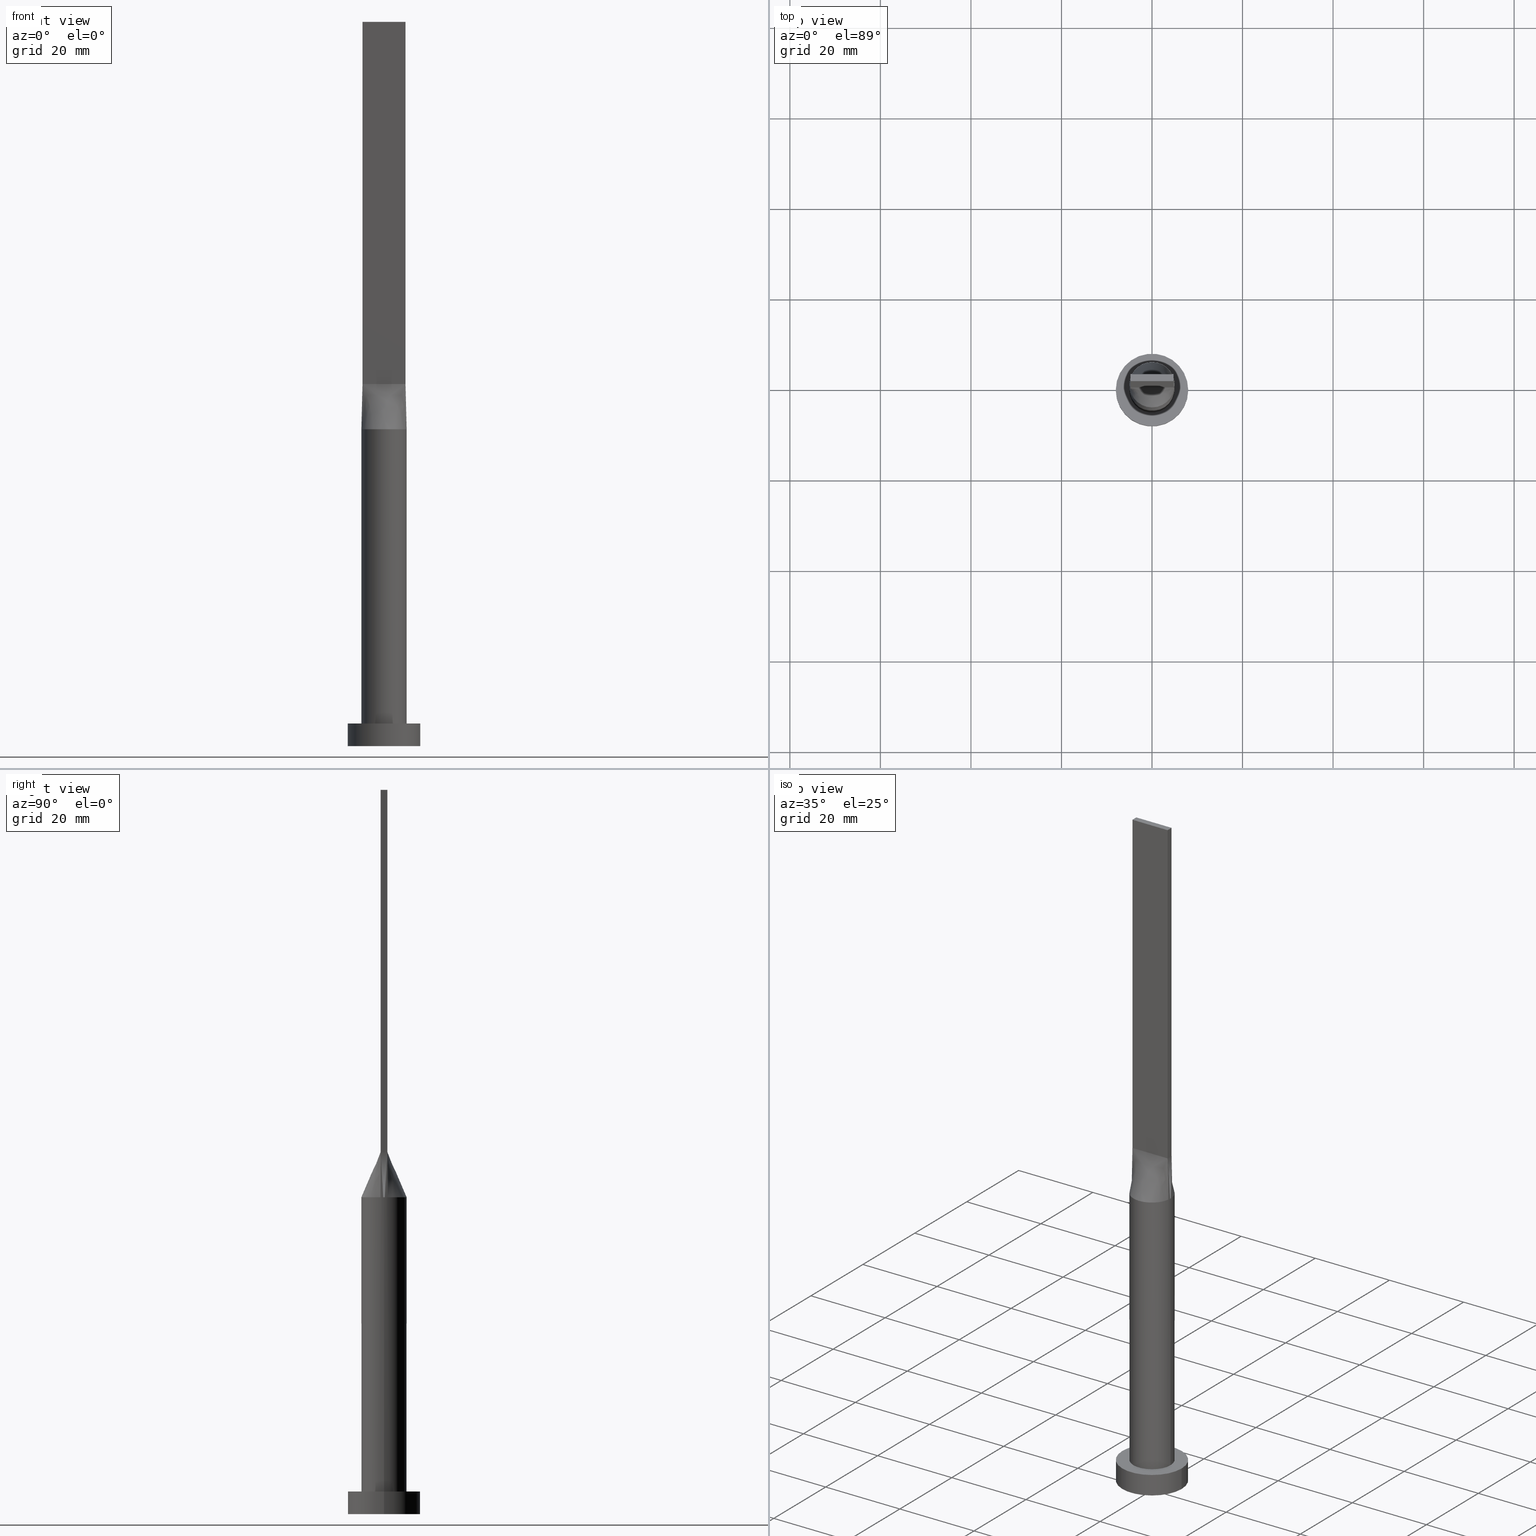
[diagram: canonical four-view strip — front | top / right | iso, engineering-drawing reading convention]
A machine part, canonical four-view strip (front | top / right | iso — engineering-drawing reading convention). The complete STEP part file that produces these views, byte-faithful:
ISO-10303-21;
HEADER;
FILE_DESCRIPTION (( 'STEP AP203' ),
    '1' );
FILE_NAME ('edcd.STEP',
    '2023-02-13T09:35:09',
    ( '' ),
    ( '' ),
    'SwSTEP 2.0',
    'SolidWorks 2019',
    '' );
FILE_SCHEMA (( 'CONFIG_CONTROL_DESIGN' ));
ENDSEC;

DATA;
#1 = LOCAL_TIME ( 10, 35, 9.000000000000000000, #235 ) ;
#2 = CARTESIAN_POINT ( 'NONE',  ( 4.938833698301754893, -0.7798158709413661738, 70.00000000000000000 ) ) ;
#3 = CARTESIAN_POINT ( 'NONE',  ( 4.029217956433126524, 3.021257902548482477, 70.00000000000001421 ) ) ;
#4 = EDGE_CURVE ( 'NONE', #115, #18, #372, .T. ) ;
#5 = CARTESIAN_POINT ( 'NONE',  ( 0.000000000000000000, 0.000000000000000000, 70.00000000000000000 ) ) ;
#6 = AXIS2_PLACEMENT_3D ( 'NONE', #255, #21, #460 ) ;
#7 = CARTESIAN_POINT ( 'NONE',  ( 4.999625637456156291, 0.2615280553041483547, 70.00000000000000000 ) ) ;
#8 = DIRECTION ( 'NONE',  ( -0.000000000000000000, -0.000000000000000000, -1.000000000000000000 ) ) ;
#9 = CARTESIAN_POINT ( 'NONE',  ( -4.999812818728077701, -1.193032336741890821E-15, 70.00000000000000000 ) ) ;
#10 = CARTESIAN_POINT ( 'NONE',  ( -4.029217956433124748, 3.021257902548482033, 70.00000000000001421 ) ) ;
#11 = CARTESIAN_POINT ( 'NONE',  ( 4.750000000000000000, -0.7499999999999997780, 80.00000000000000000 ) ) ;
#12 = ADVANCED_FACE ( 'NONE', ( #186 ), #559, .F. ) ;
#13 = CARTESIAN_POINT ( 'NONE',  ( 0.000000000000000000, 0.000000000000000000, 70.00000000000000000 ) ) ;
#14 = CARTESIAN_POINT ( 'NONE',  ( -4.938814826645345768, -0.7798128673650532861, 70.00000000000000000 ) ) ;
#15 = VECTOR ( 'NONE', #495, 1000.000000000000000 ) ;
#16 = CARTESIAN_POINT ( 'NONE',  ( 0.000000000000000000, 0.000000000000000000, 70.00000000000000000 ) ) ;
#17 = CARTESIAN_POINT ( 'NONE',  ( -4.750000000000000000, 0.2500000000000007216, 79.99999999999998579 ) ) ;
#18 = VERTEX_POINT ( 'NONE', #334 ) ;
#19 = EDGE_CURVE ( 'NONE', #613, #430, #517, .T. ) ;
#20 = DIRECTION ( 'NONE',  ( 1.000000000000000000, -6.847592668329501559E-17, 0.000000000000000000 ) ) ;
#21 = DIRECTION ( 'NONE',  ( -1.000000000000000000, 0.000000000000000000, 0.000000000000000000 ) ) ;
#22 = APPROVAL_PERSON_ORGANIZATION ( #461, #494, #474 ) ;
#23 = ORIENTED_EDGE ( 'NONE', *, *, #184, .F. ) ;
#24 = CARTESIAN_POINT ( 'NONE',  ( 4.750000000000000000, -0.7499999999999997780, 160.0000000000000000 ) ) ;
#25 = CARTESIAN_POINT ( 'NONE',  ( -2.353781608410061121, -4.424438117685769889, 69.99999999999998579 ) ) ;
#26 = ORIENTED_EDGE ( 'NONE', *, *, #213, .T. ) ;
#27 = LINE ( 'NONE', #119, #499 ) ;
#28 = CARTESIAN_POINT ( 'NONE',  ( -4.750000000000000000, -0.4999999999999990563, 79.99999999999998579 ) ) ;
#29 = ORIENTED_EDGE ( 'NONE', *, *, #79, .F. ) ;
#30 = APPROVAL_STATUS ( 'not_yet_approved' ) ;
#31 = CARTESIAN_POINT ( 'NONE',  ( 4.029217956433124748, -3.021257902548483365, 70.00000000000004263 ) ) ;
#32 = EDGE_LOOP ( 'NONE', ( #557, #277 ) ) ;
#33 = VECTOR ( 'NONE', #309, 1000.000000000000000 ) ;
#34 = CARTESIAN_POINT ( 'NONE',  ( 2.353781608410062454, 4.424438117685770777, 70.00000000000001421 ) ) ;
#35 = CARTESIAN_POINT ( 'NONE',  ( 4.874625637456157179, 1.186344398896585606, 70.00000000000001421 ) ) ;
#36 = AXIS2_PLACEMENT_3D ( 'NONE', #617, #378, #566 ) ;
#37 = CARTESIAN_POINT ( 'NONE',  ( -0.3560391241594593192, 5.000000000000000000, 70.00000000000001421 ) ) ;
#38 = EDGE_LOOP ( 'NONE', ( #265, #189, #503, #234, #546, #69 ) ) ;
#39 = EDGE_CURVE ( 'NONE', #182, #115, #96, .T. ) ;
#40 = PERSON_AND_ORGANIZATION ( #59, #97 ) ;
#41 = CARTESIAN_POINT ( 'NONE',  ( 3.168723755431094080, -3.881165404529570484, 69.99999999999998579 ) ) ;
#42 = ORIENTED_EDGE ( 'NONE', *, *, #19, .F. ) ;
#43 = CARTESIAN_POINT ( 'NONE',  ( -1.732223102076449806, 4.702695359254402518, 69.99999999999998579 ) ) ;
#44 = EDGE_CURVE ( 'NONE', #179, #84, #256, .T. ) ;
#45 = ORIENTED_EDGE ( 'NONE', *, *, #198, .F. ) ;
#46 = FACE_OUTER_BOUND ( 'NONE', #237, .T. ) ;
#47 = VERTEX_POINT ( 'NONE', #9 ) ;
#48 = PRODUCT_DEFINITION ( 'NEZN�M�', '', #148, #152 ) ;
#49 = DIRECTION ( 'NONE',  ( -1.000000000000000000, 6.847592668329501559E-17, 0.000000000000000000 ) ) ;
#50 = CARTESIAN_POINT ( 'NONE',  ( 2.643217737595826566, 4.256483892511437439, 69.99999999999998579 ) ) ;
#51 = CC_DESIGN_SECURITY_CLASSIFICATION ( #542, ( #148 ) ) ;
#52 = FACE_OUTER_BOUND ( 'NONE', #73, .T. ) ;
#53 = CARTESIAN_POINT ( 'NONE',  ( -3.404830936252120299, 3.673931880027067720, 70.00000000000001421 ) ) ;
#54 = DIRECTION ( 'NONE',  ( 0.000000000000000000, 0.000000000000000000, 1.000000000000000000 ) ) ;
#55 = CARTESIAN_POINT ( 'NONE',  ( -3.168723755431092748, 3.881165404529570484, 69.99999999999998579 ) ) ;
#56 = AXIS2_PLACEMENT_3D ( 'NONE', #620, #482, #49 ) ;
#57 = CARTESIAN_POINT ( 'NONE',  ( -1.583333333333335924, 0.7500000000000002220, 79.99999999999997158 ) ) ;
#58 = CARTESIAN_POINT ( 'NONE',  ( -4.750000000000000000, -0.7499999999999991118, 80.00000000000000000 ) ) ;
#59 = PERSON ( 'NEUR�EN�', 'NEUR�EN�', 'NEUR�EN�', ('NEUR�EN�'), ('NEUR�EN�'), ('NEUR�EN�') ) ;
#60 = DIRECTION ( 'NONE',  ( 1.000000000000000000, 0.000000000000000000, -0.000000000000000000 ) ) ;
#61 = DIRECTION ( 'NONE',  ( 0.000000000000000000, 1.000000000000000000, 0.000000000000000000 ) ) ;
#62 = ADVANCED_FACE ( 'NONE', ( #483 ), #295, .T. ) ;
#63 = CARTESIAN_POINT ( 'NONE',  ( 4.750000000000000000, 0.7500000000000002220, 160.0000000000000000 ) ) ;
#64 = CARTESIAN_POINT ( 'NONE',  ( -2.643217737595827010, -4.256483892511436551, 69.99999999999998579 ) ) ;
#65 = VECTOR ( 'NONE', #20, 1000.000000000000000 ) ;
#66 = ORIENTED_EDGE ( 'NONE', *, *, #156, .F. ) ;
#67 = CARTESIAN_POINT ( 'NONE',  ( 4.844407413322673328, -0.7649064336825285304, 75.00000000000001421 ) ) ;
#68 = LINE ( 'NONE', #264, #431 ) ;
#69 = ORIENTED_EDGE ( 'NONE', *, *, #221, .T. ) ;
#70 = EDGE_CURVE ( 'NONE', #179, #115, #387, .T. ) ;
#71 = CARTESIAN_POINT ( 'NONE',  ( 0.000000000000000000, 0.000000000000000000, 5.000000000000000000 ) ) ;
#72 = CARTESIAN_POINT ( 'NONE',  ( 4.750000000000000000, -0.7499999999999997780, 80.00000000000000000 ) ) ;
#73 = EDGE_LOOP ( 'NONE', ( #570, #121, #404, #510 ) ) ;
#74 = LINE ( 'NONE', #67, #108 ) ;
#75 = CARTESIAN_POINT ( 'NONE',  ( -1.979166666666661190, -0.7499999999999995559, 79.99999999999998579 ) ) ;
#76 = VERTEX_POINT ( 'NONE', #206 ) ;
#77 = AXIS2_PLACEMENT_3D ( 'NONE', #126, #360, #310 ) ;
#78 = PERSON_AND_ORGANIZATION_ROLE ( 'design_supplier' ) ;
#79 = EDGE_CURVE ( 'NONE', #84, #18, #575, .T. ) ;
#80 = CARTESIAN_POINT ( 'NONE',  ( 1.732223102076449583, -4.702695359254404295, 70.00000000000000000 ) ) ;
#81 = ORIENTED_EDGE ( 'NONE', *, *, #336, .F. ) ;
#82 = DATE_AND_TIME ( #175, #454 ) ;
#83 = CARTESIAN_POINT ( 'NONE',  ( 0.3560391241594588196, -5.000000000000000888, 70.00000000000001421 ) ) ;
#84 = VERTEX_POINT ( 'NONE', #150 ) ;
#85 = DATE_AND_TIME ( #367, #591 ) ;
#86 = CARTESIAN_POINT ( 'NONE',  ( 0.7119876437238003009, -4.961551549233181646, 70.00000000000000000 ) ) ;
#87 = ORIENTED_EDGE ( 'NONE', *, *, #616, .F. ) ;
#88 = VECTOR ( 'NONE', #200, 1000.000000000000114 ) ;
#89 = CC_DESIGN_DATE_AND_TIME_ASSIGNMENT ( #82, #231, ( #542 ) ) ;
#90 = SECURITY_CLASSIFICATION_LEVEL ( 'unclassified' ) ;
#91 = CARTESIAN_POINT ( 'NONE',  ( -0.7119876437238006339, 4.961551549233178982, 70.00000000000000000 ) ) ;
#92 = VERTEX_POINT ( 'NONE', #350 ) ;
#93 = EDGE_CURVE ( 'NONE', #76, #516, #393, .T. ) ;
#94 = APPLICATION_PROTOCOL_DEFINITION ( 'international standard', 'config_control_design', 1994, #159 ) ;
#95 = CARTESIAN_POINT ( 'NONE',  ( 1.979166666666662078, 0.7500000000000002220, 79.99999999999998579 ) ) ;
#96 = LINE ( 'NONE', #477, #117 ) ;
#97 = ORGANIZATION ( 'NEUR�EN�', 'NEUR�EN�', '' ) ;
#98 = LINE ( 'NONE', #578, #383 ) ;
#99 = ORIENTED_EDGE ( 'NONE', *, *, #44, .T. ) ;
#100 = CYLINDRICAL_SURFACE ( 'NONE', #409, 8.000000000000000000 ) ;
#101 = CARTESIAN_POINT ( 'NONE',  ( -0.7119876437238006339, 4.961551549233178982, 70.00000000000000000 ) ) ;
#102 = CARTESIAN_POINT ( 'NONE',  ( 0.000000000000000000, 0.000000000000000000, 70.00000000000000000 ) ) ;
#103 = CARTESIAN_POINT ( 'NONE',  ( 4.999625637456156291, -0.2615280553041495204, 70.00000000000000000 ) ) ;
#104 = DIRECTION ( 'NONE',  ( -1.000000000000000000, 0.000000000000000000, 0.000000000000000000 ) ) ;
#105 = CARTESIAN_POINT ( 'NONE',  ( 3.404830936252119411, 3.673931880027066388, 70.00000000000000000 ) ) ;
#106 = PLANE ( 'NONE',  #488 ) ;
#107 = CARTESIAN_POINT ( 'NONE',  ( -1.732223102076449806, 4.702695359254402518, 69.99999999999998579 ) ) ;
#108 = VECTOR ( 'NONE', #163, 1000.000000000000114 ) ;
#109 = DIRECTION ( 'NONE',  ( -0.000000000000000000, -0.000000000000000000, -1.000000000000000000 ) ) ;
#110 = CARTESIAN_POINT ( 'NONE',  ( 4.750000000000000000, 0.7500000000000002220, 80.00000000000000000 ) ) ;
#111 = LINE ( 'NONE', #263, #33 ) ;
#112 = APPROVAL_PERSON_ORGANIZATION ( #40, #422, #567 ) ;
#113 = PRODUCT_RELATED_PRODUCT_CATEGORY ( 'detail', '', ( #128 ) ) ;
#114 = CARTESIAN_POINT ( 'NONE',  ( -4.354166666666666075, -0.7499999999999992228, 80.00000000000000000 ) ) ;
#115 = VERTEX_POINT ( 'NONE', #340 ) ;
#116 = CARTESIAN_POINT ( 'NONE',  ( -8.000000000000000000, 0.000000000000000000, 0.000000000000000000 ) ) ;
#117 = VECTOR ( 'NONE', #242, 1000.000000000000000 ) ;
#118 = CARTESIAN_POINT ( 'NONE',  ( -4.999625637456156291, -0.2615280553041481326, 70.00000000000000000 ) ) ;
#119 = CARTESIAN_POINT ( 'NONE',  ( -5.000000000000000000, 0.000000000000000000, 70.00000000000000000 ) ) ;
#120 = CARTESIAN_POINT ( 'NONE',  ( -3.166666666666662966, -0.7499999999999993339, 79.99999999999998579 ) ) ;
#121 = ORIENTED_EDGE ( 'NONE', *, *, #579, .F. ) ;
#122 = CC_DESIGN_PERSON_AND_ORGANIZATION_ASSIGNMENT ( #464, #183, ( #148 ) ) ;
#123 = CARTESIAN_POINT ( 'NONE',  ( -0.7916666666666590801, -0.7499999999999995559, 79.99999999999998579 ) ) ;
#124 = ORIENTED_EDGE ( 'NONE', *, *, #39, .F. ) ;
#125 = MECHANICAL_CONTEXT ( 'NONE', #159, 'mechanical' ) ;
#126 = CARTESIAN_POINT ( 'NONE',  ( 0.000000000000000000, 0.000000000000000000, 0.000000000000000000 ) ) ;
#127 = EDGE_LOOP ( 'NONE', ( #165, #498, #81, #316 ) ) ;
#128 = PRODUCT ( 'edcd', 'edcd', '', ( #125 ) ) ;
#129 = AXIS2_PLACEMENT_3D ( 'NONE', #102, #54, #249 ) ;
#130 = EDGE_CURVE ( 'NONE', #516, #174, #530, .T. ) ;
#131 = DIRECTION ( 'NONE',  ( 0.000000000000000000, 0.000000000000000000, 1.000000000000000000 ) ) ;
#132 = ADVANCED_FACE ( 'NONE', ( #445 ), #491, .T. ) ;
#133 = CARTESIAN_POINT ( 'NONE',  ( 4.938814826645345768, -0.7798128673650571718, 70.00000000000000000 ) ) ;
#134 = DIRECTION ( 'NONE',  ( 0.000000000000000000, 0.000000000000000000, 1.000000000000000000 ) ) ;
#135 = CARTESIAN_POINT ( 'NONE',  ( -0.3958333333333260429, -0.7499999999999995559, 79.99999999999998579 ) ) ;
#136 = ORIENTED_EDGE ( 'NONE', *, *, #336, .T. ) ;
#137 = PERSON_AND_ORGANIZATION ( #59, #97 ) ;
#138 = CARTESIAN_POINT ( 'NONE',  ( 1.583333333333328596, 0.7500000000000002220, 79.99999999999998579 ) ) ;
#139 = DIRECTION ( 'NONE',  ( 1.000000000000000000, 0.000000000000000000, 0.000000000000000000 ) ) ;
#140 = VECTOR ( 'NONE', #61, 1000.000000000000000 ) ;
#141 = AXIS2_PLACEMENT_3D ( 'NONE', #576, #298, #438 ) ;
#142 = CALENDAR_DATE ( 2023, 13, 2 ) ;
#143 = CARTESIAN_POINT ( 'NONE',  ( 0.7916666666666742902, -0.7499999999999995559, 79.99999999999997158 ) ) ;
#144 = VECTOR ( 'NONE', #592, 1000.000000000000000 ) ;
#145 = ORIENTED_EDGE ( 'NONE', *, *, #616, .T. ) ;
#146 = CARTESIAN_POINT ( 'NONE',  ( 4.938814826645345768, 0.7798128673650542853, 70.00000000000000000 ) ) ;
#147 = EDGE_LOOP ( 'NONE', ( #601, #375 ) ) ;
#148 = PRODUCT_DEFINITION_FORMATION_WITH_SPECIFIED_SOURCE ( 'LIBOVOLN�', '', #128, .NOT_KNOWN. ) ;
#149 = CARTESIAN_POINT ( 'NONE',  ( -1.979166666666668961, 0.7500000000000002220, 79.99999999999997158 ) ) ;
#150 = CARTESIAN_POINT ( 'NONE',  ( -4.938831943662458812, 0.7798155886440081286, 70.00000000000000000 ) ) ;
#151 = CARTESIAN_POINT ( 'NONE',  ( -3.166666666666668739, 0.7500000000000002220, 79.99999999999998579 ) ) ;
#152 = DESIGN_CONTEXT ( 'detailed design', #191, 'design' ) ;
#153 = CARTESIAN_POINT ( 'NONE',  ( 4.750000000000000000, -0.2500000000000003331, 79.99999999999998579 ) ) ;
#154 = CARTESIAN_POINT ( 'NONE',  ( -4.938814826645345768, 0.7798128673650545073, 70.00000000000000000 ) ) ;
#155 = CARTESIAN_POINT ( 'NONE',  ( -1.400150253878312823, 4.812847332616943419, 70.00000000000001421 ) ) ;
#156 = EDGE_CURVE ( 'NONE', #174, #115, #538, .T. ) ;
#157 = DIRECTION ( 'NONE',  ( 1.000000000000000000, 0.000000000000000000, -0.000000000000000000 ) ) ;
#158 = DIRECTION ( 'NONE',  ( 0.01887803397728733332, -0.002980742206940074218, 0.9998173508241633423 ) ) ;
#159 = APPLICATION_CONTEXT ( 'configuration controlled 3d designs of mechanical parts and assemblies' ) ;
#160 = CARTESIAN_POINT ( 'NONE',  ( 8.000000000000000000, 9.797174393178825657E-16, 5.000000000000000000 ) ) ;
#161 = CARTESIAN_POINT ( 'NONE',  ( 4.938814826645345768, -0.7798128673650550624, 70.00000000000000000 ) ) ;
#162 = AXIS2_PLACEMENT_3D ( 'NONE', #484, #289, #196 ) ;
#163 = DIRECTION ( 'NONE',  ( -0.01887803397728733332, 0.002980742206940388637, 0.9998173508241633423 ) ) ;
#164 = DIRECTION ( 'NONE',  ( 0.000000000000000000, 0.000000000000000000, 1.000000000000000000 ) ) ;
#165 = ORIENTED_EDGE ( 'NONE', *, *, #4, .T. ) ;
#166 = FACE_OUTER_BOUND ( 'NONE', #329, .T. ) ;
#167 = CARTESIAN_POINT ( 'NONE',  ( -4.979355367185886116, 0.5230561106082979306, 70.00000000000000000 ) ) ;
#168 = ORIENTED_EDGE ( 'NONE', *, *, #351, .T. ) ;
#169 =( NAMED_UNIT ( * ) PLANE_ANGLE_UNIT ( ) SI_UNIT ( $, .RADIAN. ) );
#170 = CARTESIAN_POINT ( 'NONE',  ( -3.958333333333332149, -0.7499999999999993339, 80.00000000000000000 ) ) ;
#171 = DIRECTION ( 'NONE',  ( 1.000000000000000000, 0.000000000000000000, 0.000000000000000000 ) ) ;
#172 = CARTESIAN_POINT ( 'NONE',  ( -1.385416666666659857, -0.7499999999999995559, 79.99999999999998579 ) ) ;
#173 = EDGE_CURVE ( 'NONE', #430, #604, #244, .T. ) ;
#174 = VERTEX_POINT ( 'NONE', #72 ) ;
#175 = CALENDAR_DATE ( 2023, 13, 2 ) ;
#176 = CARTESIAN_POINT ( 'NONE',  ( -4.750000000000000000, 0.7500000000000002220, 80.00000000000000000 ) ) ;
#177 = EDGE_LOOP ( 'NONE', ( #598, #416, #619, #313 ) ) ;
#178 = CARTESIAN_POINT ( 'NONE',  ( 4.753727492665065668, 1.629988260829201563, 70.00000000000000000 ) ) ;
#179 = VERTEX_POINT ( 'NONE', #590 ) ;
#180 = CIRCLE ( 'NONE', #77, 8.000000000000000000 ) ;
#181 = CARTESIAN_POINT ( 'NONE',  ( -0.7119876437238014111, -4.961551549233179870, 69.99999999999998579 ) ) ;
#182 = VERTEX_POINT ( 'NONE', #222 ) ;
#183 = PERSON_AND_ORGANIZATION_ROLE ( 'creator' ) ;
#184 = EDGE_CURVE ( 'NONE', #516, #193, #362, .T. ) ;
#185 = CARTESIAN_POINT ( 'NONE',  ( 3.404830936252118967, -3.673931880027069496, 70.00000000000002842 ) ) ;
#186 = FACE_OUTER_BOUND ( 'NONE', #523, .T. ) ;
#187 = DATE_TIME_ROLE ( 'creation_date' ) ;
#188 = CARTESIAN_POINT ( 'NONE',  ( 3.166666666666663854, 0.7500000000000002220, 79.99999999999998579 ) ) ;
#189 = ORIENTED_EDGE ( 'NONE', *, *, #351, .F. ) ;
#190 = CC_DESIGN_DATE_AND_TIME_ASSIGNMENT ( #614, #187, ( #48 ) ) ;
#191 = APPLICATION_CONTEXT ( 'configuration controlled 3d designs of mechanical parts and assemblies' ) ;
#192 = CARTESIAN_POINT ( 'NONE',  ( 2.177083333333340143, -0.7499999999999997780, 79.99999999999998579 ) ) ;
#193 = VERTEX_POINT ( 'NONE', #258 ) ;
#194 = ADVANCED_FACE ( 'NONE', ( #211 ), #593, .F. ) ;
#195 = ADVANCED_BREP_SHAPE_REPRESENTATION ( 'edcd', ( #301, #207 ), #475 ) ;
#196 = DIRECTION ( 'NONE',  ( 1.000000000000000000, 0.000000000000000000, 0.000000000000000000 ) ) ;
#197 = CARTESIAN_POINT ( 'NONE',  ( -0.3560391241594593192, 5.000000000000000000, 70.00000000000001421 ) ) ;
#198 = EDGE_CURVE ( 'NONE', #543, #182, #550, .T. ) ;
#199 = CARTESIAN_POINT ( 'NONE',  ( -4.874625637456156291, 1.186344398896586716, 70.00000000000000000 ) ) ;
#200 = DIRECTION ( 'NONE',  ( -0.01887803397728733332, -0.002980742206940009600, 0.9998173508241633423 ) ) ;
#201 = CC_DESIGN_PERSON_AND_ORGANIZATION_ASSIGNMENT ( #423, #78, ( #148 ) ) ;
#202 = DIRECTION ( 'NONE',  ( -0.000000000000000000, -0.000000000000000000, -1.000000000000000000 ) ) ;
#203 = CARTESIAN_POINT ( 'NONE',  ( -4.029217956433124748, 3.021257902548482033, 70.00000000000001421 ) ) ;
#204 = CARTESIAN_POINT ( 'NONE',  ( 8.000000000000000000, 9.797174393178825657E-16, 0.000000000000000000 ) ) ;
#205 = ADVANCED_FACE ( 'NONE', ( #215 ), #300, .T. ) ;
#206 = CARTESIAN_POINT ( 'NONE',  ( -4.750000000000000000, -0.7499999999999991118, 160.0000000000000000 ) ) ;
#207 = AXIS2_PLACEMENT_3D ( 'NONE', #324, #131, #373 ) ;
#208 = CARTESIAN_POINT ( 'NONE',  ( -2.353781608410062010, 4.424438117685770777, 69.99999999999998579 ) ) ;
#209 = CARTESIAN_POINT ( 'NONE',  ( 4.979355367185886116, 0.5230561106082972644, 70.00000000000000000 ) ) ;
#210 = CARTESIAN_POINT ( 'NONE',  ( -4.750000000000000000, -0.7499999999999991118, 160.0000000000000000 ) ) ;
#211 = FACE_OUTER_BOUND ( 'NONE', #320, .T. ) ;
#212 = AXIS2_PLACEMENT_3D ( 'NONE', #63, #257, #217 ) ;
#213 = EDGE_CURVE ( 'NONE', #604, #425, #180, .T. ) ;
#214 = DIRECTION ( 'NONE',  ( 0.000000000000000000, 0.000000000000000000, 1.000000000000000000 ) ) ;
#215 = FACE_OUTER_BOUND ( 'NONE', #285, .T. ) ;
#216 = ORIENTED_EDGE ( 'NONE', *, *, #93, .F. ) ;
#217 = DIRECTION ( 'NONE',  ( 0.000000000000000000, -0.000000000000000000, -1.000000000000000000 ) ) ;
#218 = CARTESIAN_POINT ( 'NONE',  ( -4.938814826645345768, -0.7798128673650532861, 70.00000000000000000 ) ) ;
#219 = ORIENTED_EDGE ( 'NONE', *, *, #282, .T. ) ;
#220 = DIRECTION ( 'NONE',  ( 1.000000000000000000, 0.000000000000000000, 0.000000000000000000 ) ) ;
#221 = EDGE_CURVE ( 'NONE', #428, #92, #568, .T. ) ;
#222 = CARTESIAN_POINT ( 'NONE',  ( 4.750000000000000000, 0.7500000000000002220, 160.0000000000000000 ) ) ;
#223 = ORIENTED_EDGE ( 'NONE', *, *, #551, .T. ) ;
#224 = DIRECTION ( 'NONE',  ( 0.000000000000000000, 0.000000000000000000, 1.000000000000000000 ) ) ;
#225 = CARTESIAN_POINT ( 'NONE',  ( -4.332026455536839293, -2.547220758687717801, 70.00000000000000000 ) ) ;
#226 = ORIENTED_EDGE ( 'NONE', *, *, #293, .T. ) ;
#227 = SHAPE_DEFINITION_REPRESENTATION ( #607, #195 ) ;
#228 = CARTESIAN_POINT ( 'NONE',  ( 4.753727492665065668, -1.629988260829203561, 69.99999999999998579 ) ) ;
#229 = CARTESIAN_POINT ( 'NONE',  ( 1.385416666666662078, 0.7500000000000002220, 79.99999999999998579 ) ) ;
#230 = CARTESIAN_POINT ( 'NONE',  ( -4.750000000000000000, 0.7500000000000002220, 80.00000000000000000 ) ) ;
#231 = DATE_TIME_ROLE ( 'classification_date' ) ;
#232 = AXIS2_PLACEMENT_3D ( 'NONE', #254, #402, #220 ) ;
#233 = CARTESIAN_POINT ( 'NONE',  ( -0.1979166666666694052, 0.7500000000000002220, 79.99999999999997158 ) ) ;
#234 = ORIENTED_EDGE ( 'NONE', *, *, #585, .F. ) ;
#235 = COORDINATED_UNIVERSAL_TIME_OFFSET ( 1, 0, .AHEAD. ) ;
#236 = CARTESIAN_POINT ( 'NONE',  ( -1.400150253878312823, 4.812847332616943419, 70.00000000000001421 ) ) ;
#237 = EDGE_LOOP ( 'NONE', ( #513, #281, #407, #26 ) ) ;
#238 = AXIS2_PLACEMENT_3D ( 'NONE', #589, #447, #399 ) ;
#239 = PERSON_AND_ORGANIZATION_ROLE ( 'design_owner' ) ;
#240 = CARTESIAN_POINT ( 'NONE',  ( 2.770833333333329929, 0.7500000000000002220, 79.99999999999998579 ) ) ;
#241 = VECTOR ( 'NONE', #534, 1000.000000000000000 ) ;
#242 = DIRECTION ( 'NONE',  ( -0.000000000000000000, -0.000000000000000000, -1.000000000000000000 ) ) ;
#243 = FACE_OUTER_BOUND ( 'NONE', #311, .T. ) ;
#244 = LINE ( 'NONE', #485, #278 ) ;
#245 = CARTESIAN_POINT ( 'NONE',  ( -2.643217737595827455, 4.256483892511438327, 70.00000000000000000 ) ) ;
#246 = CARTESIAN_POINT ( 'NONE',  ( -4.332026455536841070, 2.547220758687717801, 70.00000000000000000 ) ) ;
#247 = CC_DESIGN_APPROVAL ( #494, ( #48 ) ) ;
#248 = CYLINDRICAL_SURFACE ( 'NONE', #141, 5.000000000000000000 ) ;
#249 = DIRECTION ( 'NONE',  ( 1.000000000000000000, 2.664535259100375697E-15, 0.000000000000000000 ) ) ;
#250 = CARTESIAN_POINT ( 'NONE',  ( 2.353781608410062454, 4.424438117685770777, 70.00000000000001421 ) ) ;
#251 = CIRCLE ( 'NONE', #232, 5.000000000000000000 ) ;
#252 = CARTESIAN_POINT ( 'NONE',  ( -4.750000000000000000, 0.7500000000000002220, 80.00000000000000000 ) ) ;
#253 = CARTESIAN_POINT ( 'NONE',  ( -4.938831943662458812, 0.7798155886440081286, 70.00000000000000000 ) ) ;
#254 = CARTESIAN_POINT ( 'NONE',  ( 0.000000000000000000, 0.000000000000000000, 5.000000000000000000 ) ) ;
#255 = CARTESIAN_POINT ( 'NONE',  ( 4.750000000000000000, -0.7499999999999997780, 160.0000000000000000 ) ) ;
#256 = B_SPLINE_CURVE_WITH_KNOTS ( 'NONE', 3,
 ( #323, #35, #421, #610, #3, #105, #440, #50, #250, #621, #492, #390, #434, #197, #101, #155, #107, #443, #346, #55, #53, #203, #246, #290, #304, #253 ),
 .UNSPECIFIED., .F., .F.,
 ( 4, 2, 2, 2, 2, 2, 2, 2, 2, 2, 2, 2, 4 ),
 ( 0.000000000000000000, 0.1250000000000001388, 0.2500000000000002220, 0.3125000000000002776, 0.3750000000000002776, 0.4375000000000002776, 0.5000000000000002220, 0.5625000000000002220, 0.6250000000000001110, 0.6875000000000001110, 0.7500000000000001110, 0.8750000000000001110, 1.000000000000000000 ),
 .UNSPECIFIED. ) ;
#257 = DIRECTION ( 'NONE',  ( 0.000000000000000000, -1.000000000000000000, 0.000000000000000000 ) ) ;
#258 = CARTESIAN_POINT ( 'NONE',  ( -4.938821632323166178, -0.7798139456827060112, 70.00000000000000000 ) ) ;
#259 = ORIENTED_EDGE ( 'NONE', *, *, #44, .F. ) ;
#260 =( LENGTH_UNIT ( ) NAMED_UNIT ( * ) SI_UNIT ( .MILLI., .METRE. ) );
#261 = DIRECTION ( 'NONE',  ( -0.000000000000000000, -0.000000000000000000, -1.000000000000000000 ) ) ;
#262 = EDGE_LOOP ( 'NONE', ( #99, #554, #414, #357 ) ) ;
#263 = CARTESIAN_POINT ( 'NONE',  ( -4.750000000000000000, 0.7500000000000002220, 80.00000000000000000 ) ) ;
#264 = CARTESIAN_POINT ( 'NONE',  ( -4.750000000000000000, 0.7500000000000002220, 160.0000000000000000 ) ) ;
#265 = ORIENTED_EDGE ( 'NONE', *, *, #335, .F. ) ;
#266 = PLANE ( 'NONE',  #212 ) ;
#267 = CARTESIAN_POINT ( 'NONE',  ( -4.999625637456156291, 0.2615280553041492984, 70.00000000000000000 ) ) ;
#268 = ORIENTED_EDGE ( 'NONE', *, *, #470, .F. ) ;
#269 = CARTESIAN_POINT ( 'NONE',  ( 1.400150253878312157, -4.812847332616943419, 70.00000000000001421 ) ) ;
#270 = ORIENTED_EDGE ( 'NONE', *, *, #585, .T. ) ;
#271 = APPROVAL_STATUS ( 'not_yet_approved' ) ;
#272 = CARTESIAN_POINT ( 'NONE',  ( 0.1979166666666732077, -0.7499999999999994449, 79.99999999999997158 ) ) ;
#273 = DIRECTION ( 'NONE',  ( -1.000000000000000000, -0.000000000000000000, -0.000000000000000000 ) ) ;
#274 = COORDINATED_UNIVERSAL_TIME_OFFSET ( 1, 0, .AHEAD. ) ;
#275 = CARTESIAN_POINT ( 'NONE',  ( 2.177083333333329040, 0.7500000000000002220, 79.99999999999998579 ) ) ;
#276 = VECTOR ( 'NONE', #273, 1000.000000000000000 ) ;
#277 = ORIENTED_EDGE ( 'NONE', *, *, #571, .F. ) ;
#278 = VECTOR ( 'NONE', #450, 1000.000000000000000 ) ;
#279 = APPROVAL_ROLE ( '' ) ;
#280 = CARTESIAN_POINT ( 'NONE',  ( 3.958333333333336146, -0.7499999999999997780, 80.00000000000000000 ) ) ;
#281 = ORIENTED_EDGE ( 'NONE', *, *, #293, .F. ) ;
#282 = EDGE_CURVE ( 'NONE', #588, #18, #68, .T. ) ;
#283 = CALENDAR_DATE ( 2023, 13, 2 ) ;
#284 = CARTESIAN_POINT ( 'NONE',  ( 1.732223102076450250, 4.702695359254404295, 69.99999999999998579 ) ) ;
#285 = EDGE_LOOP ( 'NONE', ( #453, #270, #23, #87, #29 ) ) ;
#286 = CARTESIAN_POINT ( 'NONE',  ( 0.000000000000000000, 0.000000000000000000, 5.000000000000000000 ) ) ;
#287 = EDGE_LOOP ( 'NONE', ( #168, #307, #573, #66, #268 ) ) ;
#288 = AXIS2_PLACEMENT_3D ( 'NONE', #452, #164, #356 ) ;
#289 = DIRECTION ( 'NONE',  ( 0.000000000000000000, 0.000000000000000000, 1.000000000000000000 ) ) ;
#290 = CARTESIAN_POINT ( 'NONE',  ( -4.753727492665067444, 1.629988260829202007, 70.00000000000001421 ) ) ;
#291 = CARTESIAN_POINT ( 'NONE',  ( -3.168723755431092748, 3.881165404529570484, 69.99999999999998579 ) ) ;
#292 = CARTESIAN_POINT ( 'NONE',  ( 4.750000000000000000, -0.5000000000000001110, 79.99999999999998579 ) ) ;
#293 = EDGE_CURVE ( 'NONE', #430, #613, #331, .T. ) ;
#294 = DIRECTION ( 'NONE',  ( 0.000000000000000000, 0.000000000000000000, 1.000000000000000000 ) ) ;
#295 = CYLINDRICAL_SURFACE ( 'NONE', #439, 5.000000000000000000 ) ;
#296 = AXIS2_PLACEMENT_3D ( 'NONE', #400, #500, #587 ) ;
#297 = CIRCLE ( 'NONE', #481, 5.000000000000000000 ) ;
#298 = DIRECTION ( 'NONE',  ( -0.000000000000000000, -0.000000000000000000, -1.000000000000000000 ) ) ;
#299 = AXIS2_PLACEMENT_3D ( 'NONE', #71, #493, #60 ) ;
#300 = B_SPLINE_SURFACE_WITH_KNOTS ( 'NONE', 3, 1, ( 
 ( #410, #176 ),
 ( #167, #545 ),
 ( #267, #17 ),
 ( #118, #448 ),
 ( #403, #28 ),
 ( #14, #505 ) ),
 .UNSPECIFIED., .F., .F., .F.,
 ( 4, 2, 4 ),
 ( 2, 2 ),
 ( 0.000000000000000000, 0.5000000000000000000, 1.000000000000000000 ),
 ( 0.000000000000000000, 1.000000000000000000 ),
 .UNSPECIFIED. ) ;
#301 = MANIFOLD_SOLID_BREP ( 'P�idat vysunut�m5', #308 ) ;
#302 = ADVANCED_FACE ( 'NONE', ( #600 ), #354, .T. ) ;
#303 = CARTESIAN_POINT ( 'NONE',  ( -4.750000000000000000, -0.7499999999999991118, 80.00000000000000000 ) ) ;
#304 = CARTESIAN_POINT ( 'NONE',  ( -4.874625637456156291, 1.186344398896586716, 70.00000000000000000 ) ) ;
#305 = LINE ( 'NONE', #24, #144 ) ;
#306 = CARTESIAN_POINT ( 'NONE',  ( -2.770833333333329040, -0.7499999999999994449, 79.99999999999998579 ) ) ;
#307 = ORIENTED_EDGE ( 'NONE', *, *, #507, .T. ) ;
#308 = CLOSED_SHELL ( 'NONE', ( #417, #370, #396, #555, #363, #62, #302, #132, #205, #330, #458, #12, #401, #194, #539 ) ) ;
#309 = DIRECTION ( 'NONE',  ( 0.000000000000000000, -1.000000000000000000, 0.000000000000000000 ) ) ;
#310 = DIRECTION ( 'NONE',  ( 1.000000000000000000, 0.000000000000000000, 0.000000000000000000 ) ) ;
#311 = EDGE_LOOP ( 'NONE', ( #42, #223, #480, #338 ) ) ;
#312 = CARTESIAN_POINT ( 'NONE',  ( -4.029217956433126524, -3.021257902548482033, 70.00000000000001421 ) ) ;
#313 = ORIENTED_EDGE ( 'NONE', *, *, #184, .T. ) ;
#314 = DIRECTION ( 'NONE',  ( 1.000000000000000000, 0.000000000000000000, -0.000000000000000000 ) ) ;
#315 = CARTESIAN_POINT ( 'NONE',  ( -0.9895833333333258208, -0.7499999999999995559, 79.99999999999998579 ) ) ;
#316 = ORIENTED_EDGE ( 'NONE', *, *, #39, .T. ) ;
#317 = CALENDAR_DATE ( 2023, 13, 2 ) ;
#318 = DIRECTION ( 'NONE',  ( -0.01887803397728733332, -0.002980742206940063810, -0.9998173508241633423 ) ) ;
#319 = VECTOR ( 'NONE', #345, 1000.000000000000000 ) ;
#320 = EDGE_LOOP ( 'NONE', ( #364, #124, #45, #469 ) ) ;
#321 = COORDINATED_UNIVERSAL_TIME_OFFSET ( 1, 0, .AHEAD. ) ;
#322 = CARTESIAN_POINT ( 'NONE',  ( 0.3958333333333404758, -0.7499999999999994449, 79.99999999999997158 ) ) ;
#323 = CARTESIAN_POINT ( 'NONE',  ( 4.938814826645345768, 0.7798128673650538412, 70.00000000000000000 ) ) ;
#324 = CARTESIAN_POINT ( 'NONE',  ( 0.000000000000000000, 0.000000000000000000, 0.000000000000000000 ) ) ;
#325 = CARTESIAN_POINT ( 'NONE',  ( 0.3958333333333295401, 0.7500000000000002220, 79.99999999999998579 ) ) ;
#326 = APPROVAL_PERSON_ORGANIZATION ( #564, #520, #279 ) ;
#327 = ORIENTED_EDGE ( 'NONE', *, *, #441, .F. ) ;
#328 = CARTESIAN_POINT ( 'NONE',  ( 1.583333333333340143, -0.7499999999999997780, 79.99999999999998579 ) ) ;
#329 = EDGE_LOOP ( 'NONE', ( #226, #466 ) ) ;
#330 = ADVANCED_FACE ( 'NONE', ( #415 ), #563, .T. ) ;
#331 = CIRCLE ( 'NONE', #288, 8.000000000000000000 ) ;
#332 = CIRCLE ( 'NONE', #238, 5.000000000000000000 ) ;
#333 = CARTESIAN_POINT ( 'NONE',  ( 3.168723755431093192, 3.881165404529570040, 69.99999999999998579 ) ) ;
#334 = CARTESIAN_POINT ( 'NONE',  ( -4.750000000000000000, 0.7500000000000002220, 80.00000000000000000 ) ) ;
#335 = EDGE_CURVE ( 'NONE', #369, #92, #98, .T. ) ;
#336 = EDGE_CURVE ( 'NONE', #182, #588, #386, .T. ) ;
#337 = DIRECTION ( 'NONE',  ( 0.000000000000000000, 0.000000000000000000, 1.000000000000000000 ) ) ;
#338 = ORIENTED_EDGE ( 'NONE', *, *, #173, .F. ) ;
#339 = CARTESIAN_POINT ( 'NONE',  ( 4.750000000000000000, 0.7500000000000002220, 160.0000000000000000 ) ) ;
#340 = CARTESIAN_POINT ( 'NONE',  ( 4.750000000000000000, 0.7500000000000002220, 80.00000000000000000 ) ) ;
#341 = VECTOR ( 'NONE', #109, 1000.000000000000000 ) ;
#342 = AXIS2_PLACEMENT_3D ( 'NONE', #455, #214, #314 ) ;
#343 = PLANE ( 'NONE',  #56 ) ;
#344 = CARTESIAN_POINT ( 'NONE',  ( 4.979355367185886116, -0.5230561106082984857, 70.00000000000000000 ) ) ;
#345 = DIRECTION ( 'NONE',  ( -1.000000000000000000, 0.000000000000000000, 0.000000000000000000 ) ) ;
#346 = CARTESIAN_POINT ( 'NONE',  ( -2.643217737595827455, 4.256483892511438327, 70.00000000000000000 ) ) ;
#347 = CC_DESIGN_PERSON_AND_ORGANIZATION_ASSIGNMENT ( #611, #239, ( #128 ) ) ;
#348 = CC_DESIGN_APPROVAL ( #422, ( #148 ) ) ;
#349 = CARTESIAN_POINT ( 'NONE',  ( -2.177083333333335702, 0.7500000000000002220, 79.99999999999997158 ) ) ;
#350 = CARTESIAN_POINT ( 'NONE',  ( 5.000000000000000000, 6.123233995736766282E-16, 5.000000000000000000 ) ) ;
#351 = EDGE_CURVE ( 'NONE', #411, #369, #528, .T. ) ;
#352 = LINE ( 'NONE', #504, #391 ) ;
#353 = CARTESIAN_POINT ( 'NONE',  ( 4.750000000000000000, 0.7500000000000002220, 80.00000000000000000 ) ) ;
#354 = B_SPLINE_SURFACE_WITH_KNOTS ( 'NONE', 3, 1, ( 
 ( #218, #541 ),
 ( #597, #114 ),
 ( #406, #170 ),
 ( #225, #120 ),
 ( #312, #306 ),
 ( #502, #413 ),
 ( #497, #75 ),
 ( #64, #456 ),
 ( #25, #172 ),
 ( #366, #315 ),
 ( #553, #123 ),
 ( #181, #135 ),
 ( #429, #618 ),
 ( #83, #272 ),
 ( #86, #322 ),
 ( #269, #143 ),
 ( #80, #462 ),
 ( #424, #380 ),
 ( #612, #328 ),
 ( #41, #615 ),
 ( #185, #192 ),
 ( #31, #384 ),
 ( #569, #522 ),
 ( #228, #280 ),
 ( #558, #572 ),
 ( #133, #377 ) ),
 .UNSPECIFIED., .F., .F., .F.,
 ( 4, 2, 2, 2, 2, 2, 2, 2, 2, 2, 2, 2, 4 ),
 ( 2, 2 ),
 ( 0.000000000000000000, 0.1250000000000000278, 0.2500000000000001110, 0.3125000000000001665, 0.3750000000000002220, 0.4375000000000002220, 0.5000000000000002220, 0.5625000000000002220, 0.6250000000000002220, 0.6875000000000002220, 0.7500000000000003331, 0.8750000000000002220, 1.000000000000000000 ),
 ( 0.000000000000000000, 1.000000000000000000 ),
 .UNSPECIFIED. ) ;
#355 = LINE ( 'NONE', #210, #65 ) ;
#356 = DIRECTION ( 'NONE',  ( 1.000000000000000000, 0.000000000000000000, 0.000000000000000000 ) ) ;
#357 = ORIENTED_EDGE ( 'NONE', *, *, #70, .F. ) ;
#358 = CC_DESIGN_APPROVAL ( #520, ( #542 ) ) ;
#359 = CARTESIAN_POINT ( 'NONE',  ( -4.750000000000000000, 0.7500000000000002220, 160.0000000000000000 ) ) ;
#360 = DIRECTION ( 'NONE',  ( 0.000000000000000000, 0.000000000000000000, 1.000000000000000000 ) ) ;
#361 = ORIENTED_EDGE ( 'NONE', *, *, #479, .F. ) ;
#362 = LINE ( 'NONE', #368, #408 ) ;
#363 = ADVANCED_FACE ( 'NONE', ( #442 ), #106, .F. ) ;
#364 = ORIENTED_EDGE ( 'NONE', *, *, #156, .T. ) ;
#365 = PLANE ( 'NONE',  #342 ) ;
#366 = CARTESIAN_POINT ( 'NONE',  ( -1.732223102076450250, -4.702695359254402518, 69.99999999999998579 ) ) ;
#367 = CALENDAR_DATE ( 2023, 13, 2 ) ;
#368 = CARTESIAN_POINT ( 'NONE',  ( -4.844407413322673328, -0.7649064336825261989, 75.00000000000001421 ) ) ;
#369 = VERTEX_POINT ( 'NONE', #526 ) ;
#370 = ADVANCED_FACE ( 'NONE', ( #243 ), #100, .T. ) ;
#371 = CARTESIAN_POINT ( 'NONE',  ( 3.958333333333332149, 0.7500000000000002220, 80.00000000000000000 ) ) ;
#372 = LINE ( 'NONE', #230, #276 ) ;
#373 = DIRECTION ( 'NONE',  ( 1.000000000000000000, 0.000000000000000000, 0.000000000000000000 ) ) ;
#374 = CARTESIAN_POINT ( 'NONE',  ( 4.332026455536839293, 2.547220758687718689, 69.99999999999998579 ) ) ;
#375 = ORIENTED_EDGE ( 'NONE', *, *, #381, .F. ) ;
#376 = APPROVAL_DATE_TIME ( #508, #422 ) ;
#377 = CARTESIAN_POINT ( 'NONE',  ( 4.750000000000000000, -0.7499999999999997780, 80.00000000000000000 ) ) ;
#378 = DIRECTION ( 'NONE',  ( 1.000000000000000000, 0.000000000000000000, -0.000000000000000000 ) ) ;
#379 = APPROVAL_STATUS ( 'not_yet_approved' ) ;
#380 = CARTESIAN_POINT ( 'NONE',  ( 1.385416666666673624, -0.7499999999999997780, 79.99999999999998579 ) ) ;
#381 = EDGE_CURVE ( 'NONE', #425, #604, #432, .T. ) ;
#382 = CARTESIAN_POINT ( 'NONE',  ( 0.000000000000000000, 0.000000000000000000, 5.000000000000000000 ) ) ;
#383 = VECTOR ( 'NONE', #397, 1000.000000000000000 ) ;
#384 = CARTESIAN_POINT ( 'NONE',  ( 2.770833333333340143, -0.7499999999999997780, 79.99999999999998579 ) ) ;
#385 = ORIENTED_EDGE ( 'NONE', *, *, #435, .T. ) ;
#386 = LINE ( 'NONE', #339, #319 ) ;
#387 = LINE ( 'NONE', #437, #88 ) ;
#388 = CARTESIAN_POINT ( 'NONE',  ( -2.770833333333335702, 0.7500000000000002220, 79.99999999999998579 ) ) ;
#389 = AXIS2_PLACEMENT_3D ( 'NONE', #382, #134, #139 ) ;
#390 = CARTESIAN_POINT ( 'NONE',  ( 0.7119876437238013001, 4.961551549233180758, 70.00000000000001421 ) ) ;
#391 = VECTOR ( 'NONE', #540, 1000.000000000000000 ) ;
#392 = CARTESIAN_POINT ( 'NONE',  ( -0.9895833333333367010, 0.7500000000000002220, 79.99999999999997158 ) ) ;
#393 = LINE ( 'NONE', #577, #241 ) ;
#394 = CARTESIAN_POINT ( 'NONE',  ( -5.000000000000000000, 0.000000000000000000, 5.000000000000000000 ) ) ;
#395 = DIRECTION ( 'NONE',  ( -0.000000000000000000, -0.000000000000000000, -1.000000000000000000 ) ) ;
#396 = ADVANCED_FACE ( 'NONE', ( #46 ), #436, .T. ) ;
#397 = DIRECTION ( 'NONE',  ( -0.000000000000000000, -0.000000000000000000, -1.000000000000000000 ) ) ;
#398 = CARTESIAN_POINT ( 'NONE',  ( 4.750000000000000000, 0.4999999999999997780, 79.99999999999998579 ) ) ;
#399 = DIRECTION ( 'NONE',  ( 1.000000000000000000, 0.000000000000000000, 0.000000000000000000 ) ) ;
#400 = CARTESIAN_POINT ( 'NONE',  ( 0.000000000000000000, 0.000000000000000000, 5.000000000000000000 ) ) ;
#401 = ADVANCED_FACE ( 'NONE', ( #52 ), #343, .F. ) ;
#402 = DIRECTION ( 'NONE',  ( 0.000000000000000000, 0.000000000000000000, 1.000000000000000000 ) ) ;
#403 = CARTESIAN_POINT ( 'NONE',  ( -4.979355367185885228, -0.5230561106082968204, 70.00000000000000000 ) ) ;
#404 = ORIENTED_EDGE ( 'NONE', *, *, #435, .F. ) ;
#405 = PLANE ( 'NONE',  #299 ) ;
#406 = CARTESIAN_POINT ( 'NONE',  ( -4.753727492665065668, -1.629988260829201119, 70.00000000000000000 ) ) ;
#407 = ORIENTED_EDGE ( 'NONE', *, *, #173, .T. ) ;
#408 = VECTOR ( 'NONE', #318, 1000.000000000000114 ) ;
#409 = AXIS2_PLACEMENT_3D ( 'NONE', #286, #202, #524 ) ;
#410 = CARTESIAN_POINT ( 'NONE',  ( -4.938814826645345768, 0.7798128673650545073, 70.00000000000000000 ) ) ;
#411 = VERTEX_POINT ( 'NONE', #2 ) ;
#412 = LINE ( 'NONE', #160, #341 ) ;
#413 = CARTESIAN_POINT ( 'NONE',  ( -2.177083333333328152, -0.7499999999999995559, 79.99999999999998579 ) ) ;
#414 = ORIENTED_EDGE ( 'NONE', *, *, #4, .F. ) ;
#415 = FACE_OUTER_BOUND ( 'NONE', #262, .T. ) ;
#416 = ORIENTED_EDGE ( 'NONE', *, *, #470, .T. ) ;
#417 = ADVANCED_FACE ( 'NONE', ( #529 ), #248, .T. ) ;
#418 = EDGE_CURVE ( 'NONE', #193, #411, #608, .T. ) ;
#419 = CARTESIAN_POINT ( 'NONE',  ( 1.400150253878312823, 4.812847332616943419, 70.00000000000000000 ) ) ;
#420 = CIRCLE ( 'NONE', #459, 5.000000000000000000 ) ;
#421 = CARTESIAN_POINT ( 'NONE',  ( 4.753727492665065668, 1.629988260829201563, 70.00000000000000000 ) ) ;
#422 = APPROVAL ( #30, 'NEUR�EN�' ) ;
#423 = PERSON_AND_ORGANIZATION ( #59, #97 ) ;
#424 = CARTESIAN_POINT ( 'NONE',  ( 2.353781608410061121, -4.424438117685769889, 69.99999999999998579 ) ) ;
#425 = VERTEX_POINT ( 'NONE', #204 ) ;
#426 = PERSON_AND_ORGANIZATION ( #59, #97 ) ;
#427 = CARTESIAN_POINT ( 'NONE',  ( -0.7916666666666702934, 0.7500000000000002220, 79.99999999999997158 ) ) ;
#428 = VERTEX_POINT ( 'NONE', #394 ) ;
#429 = CARTESIAN_POINT ( 'NONE',  ( -0.3560391241594598188, -5.000000000000001776, 70.00000000000001421 ) ) ;
#430 = VERTEX_POINT ( 'NONE', #581 ) ;
#431 = VECTOR ( 'NONE', #261, 1000.000000000000000 ) ;
#432 = CIRCLE ( 'NONE', #162, 8.000000000000000000 ) ;
#433 = CARTESIAN_POINT ( 'NONE',  ( 0.000000000000000000, 0.000000000000000000, 5.000000000000000000 ) ) ;
#434 = CARTESIAN_POINT ( 'NONE',  ( 0.3560391241594590972, 5.000000000000001776, 70.00000000000001421 ) ) ;
#435 = EDGE_CURVE ( 'NONE', #76, #543, #355, .T. ) ;
#436 = CYLINDRICAL_SURFACE ( 'NONE', #535, 8.000000000000000000 ) ;
#437 = CARTESIAN_POINT ( 'NONE',  ( 4.844407413322673328, 0.7649064336825270871, 75.00000000000001421 ) ) ;
#438 = DIRECTION ( 'NONE',  ( -1.000000000000000000, 0.000000000000000000, 0.000000000000000000 ) ) ;
#439 = AXIS2_PLACEMENT_3D ( 'NONE', #532, #395, #487 ) ;
#440 = CARTESIAN_POINT ( 'NONE',  ( 3.168723755431093192, 3.881165404529570040, 69.99999999999998579 ) ) ;
#441 = EDGE_CURVE ( 'NONE', #84, #47, #297, .T. ) ;
#442 = FACE_OUTER_BOUND ( 'NONE', #147, .T. ) ;
#443 = CARTESIAN_POINT ( 'NONE',  ( -2.353781608410062010, 4.424438117685770777, 69.99999999999998579 ) ) ;
#444 = CARTESIAN_POINT ( 'NONE',  ( -3.404830936252120299, 3.673931880027067720, 70.00000000000001421 ) ) ;
#445 = FACE_OUTER_BOUND ( 'NONE', #287, .T. ) ;
#446 = LOCAL_TIME ( 10, 35, 9.000000000000000000, #274 ) ;
#447 = DIRECTION ( 'NONE',  ( 0.000000000000000000, 0.000000000000000000, 1.000000000000000000 ) ) ;
#448 = CARTESIAN_POINT ( 'NONE',  ( -4.750000000000000000, -0.2499999999999990841, 79.99999999999998579 ) ) ;
#449 = DIRECTION ( 'NONE',  ( -0.000000000000000000, -0.000000000000000000, -1.000000000000000000 ) ) ;
#450 = DIRECTION ( 'NONE',  ( -0.000000000000000000, -0.000000000000000000, -1.000000000000000000 ) ) ;
#451 = ORIENTED_EDGE ( 'NONE', *, *, #489, .F. ) ;
#452 = CARTESIAN_POINT ( 'NONE',  ( 0.000000000000000000, 0.000000000000000000, 5.000000000000000000 ) ) ;
#453 = ORIENTED_EDGE ( 'NONE', *, *, #441, .T. ) ;
#454 = LOCAL_TIME ( 10, 35, 9.000000000000000000, #321 ) ;
#455 = CARTESIAN_POINT ( 'NONE',  ( 0.000000000000000000, 0.000000000000000000, 160.0000000000000000 ) ) ;
#456 = CARTESIAN_POINT ( 'NONE',  ( -1.583333333333326820, -0.7499999999999995559, 79.99999999999998579 ) ) ;
#457 = DIRECTION ( 'NONE',  ( 0.000000000000000000, 0.000000000000000000, 1.000000000000000000 ) ) ;
#458 = ADVANCED_FACE ( 'NONE', ( #544 ), #266, .F. ) ;
#459 = AXIS2_PLACEMENT_3D ( 'NONE', #16, #457, #548 ) ;
#460 = DIRECTION ( 'NONE',  ( 0.000000000000000000, 0.000000000000000000, 1.000000000000000000 ) ) ;
#461 = PERSON_AND_ORGANIZATION ( #59, #97 ) ;
#462 = CARTESIAN_POINT ( 'NONE',  ( 0.9895833333333408088, -0.7499999999999996669, 79.99999999999997158 ) ) ;
#463 = LOCAL_TIME ( 10, 35, 9.000000000000000000, #471 ) ;
#464 = PERSON_AND_ORGANIZATION ( #59, #97 ) ;
#465 = CARTESIAN_POINT ( 'NONE',  ( 3.404830936252119411, 3.673931880027066388, 70.00000000000000000 ) ) ;
#466 = ORIENTED_EDGE ( 'NONE', *, *, #19, .T. ) ;
#467 = CC_DESIGN_PERSON_AND_ORGANIZATION_ASSIGNMENT ( #137, #560, ( #48 ) ) ;
#468 = CARTESIAN_POINT ( 'NONE',  ( 0.1979166666666636876, 0.7500000000000001110, 79.99999999999997158 ) ) ;
#469 = ORIENTED_EDGE ( 'NONE', *, *, #579, .T. ) ;
#470 = EDGE_CURVE ( 'NONE', #411, #174, #74, .T. ) ;
#471 = COORDINATED_UNIVERSAL_TIME_OFFSET ( 1, 0, .AHEAD. ) ;
#472 = CARTESIAN_POINT ( 'NONE',  ( -0.3958333333333367565, 0.7500000000000002220, 79.99999999999997158 ) ) ;
#473 = ORIENTED_EDGE ( 'NONE', *, *, #335, .T. ) ;
#474 = APPROVAL_ROLE ( '' ) ;
#475 =( GEOMETRIC_REPRESENTATION_CONTEXT ( 3 ) GLOBAL_UNCERTAINTY_ASSIGNED_CONTEXT ( ( #549 ) ) GLOBAL_UNIT_ASSIGNED_CONTEXT ( ( #260, #169, #596 ) ) REPRESENTATION_CONTEXT ( 'NONE', 'WORKASPACE' ) );
#476 = CARTESIAN_POINT ( 'NONE',  ( 0.9895833333333285964, 0.7500000000000002220, 79.99999999999998579 ) ) ;
#477 = CARTESIAN_POINT ( 'NONE',  ( 4.750000000000000000, 0.7500000000000002220, 160.0000000000000000 ) ) ;
#478 = CARTESIAN_POINT ( 'NONE',  ( -4.753727492665067444, 1.629988260829202007, 70.00000000000001421 ) ) ;
#479 = EDGE_CURVE ( 'NONE', #588, #76, #352, .T. ) ;
#480 = ORIENTED_EDGE ( 'NONE', *, *, #381, .T. ) ;
#481 = AXIS2_PLACEMENT_3D ( 'NONE', #13, #224, #171 ) ;
#482 = DIRECTION ( 'NONE',  ( 6.847592668329501559E-17, 1.000000000000000000, -0.000000000000000000 ) ) ;
#483 = FACE_OUTER_BOUND ( 'NONE', #38, .T. ) ;
#484 = CARTESIAN_POINT ( 'NONE',  ( 0.000000000000000000, 0.000000000000000000, 0.000000000000000000 ) ) ;
#485 = CARTESIAN_POINT ( 'NONE',  ( -8.000000000000000000, 0.000000000000000000, 5.000000000000000000 ) ) ;
#486 = DIRECTION ( 'NONE',  ( 1.000000000000000000, 0.000000000000000000, 0.000000000000000000 ) ) ;
#487 = DIRECTION ( 'NONE',  ( -1.000000000000000000, 0.000000000000000000, 0.000000000000000000 ) ) ;
#488 = AXIS2_PLACEMENT_3D ( 'NONE', #531, #337, #157 ) ;
#489 = EDGE_CURVE ( 'NONE', #47, #428, #27, .T. ) ;
#490 = CARTESIAN_POINT ( 'NONE',  ( -3.958333333333334370, 0.7500000000000002220, 79.99999999999998579 ) ) ;
#491 = B_SPLINE_SURFACE_WITH_KNOTS ( 'NONE', 3, 1, ( 
 ( #161, #11 ),
 ( #344, #292 ),
 ( #103, #153 ),
 ( #7, #580 ),
 ( #209, #398 ),
 ( #584, #353 ) ),
 .UNSPECIFIED., .F., .F., .F.,
 ( 4, 2, 4 ),
 ( 2, 2 ),
 ( 0.000000000000000000, 0.5000000000000000000, 1.000000000000000000 ),
 ( 0.000000000000000000, 1.000000000000000000 ),
 .UNSPECIFIED. ) ;
#492 = CARTESIAN_POINT ( 'NONE',  ( 1.400150253878312823, 4.812847332616943419, 70.00000000000000000 ) ) ;
#493 = DIRECTION ( 'NONE',  ( 0.000000000000000000, 0.000000000000000000, 1.000000000000000000 ) ) ;
#494 = APPROVAL ( #379, 'NEUR�EN�' ) ;
#495 = DIRECTION ( 'NONE',  ( -0.000000000000000000, 1.000000000000000000, -0.000000000000000000 ) ) ;
#496 = FACE_BOUND ( 'NONE', #32, .T. ) ;
#497 = CARTESIAN_POINT ( 'NONE',  ( -3.168723755431094524, -3.881165404529569152, 69.99999999999998579 ) ) ;
#498 = ORIENTED_EDGE ( 'NONE', *, *, #282, .F. ) ;
#499 = VECTOR ( 'NONE', #449, 1000.000000000000000 ) ;
#500 = DIRECTION ( 'NONE',  ( 0.000000000000000000, 0.000000000000000000, 1.000000000000000000 ) ) ;
#501 = FACE_OUTER_BOUND ( 'NONE', #519, .T. ) ;
#502 = CARTESIAN_POINT ( 'NONE',  ( -3.404830936252120299, -3.673931880027065056, 70.00000000000000000 ) ) ;
#503 = ORIENTED_EDGE ( 'NONE', *, *, #418, .F. ) ;
#504 = CARTESIAN_POINT ( 'NONE',  ( -4.750000000000000000, 0.7500000000000002220, 160.0000000000000000 ) ) ;
#505 = CARTESIAN_POINT ( 'NONE',  ( -4.750000000000000000, -0.7499999999999991118, 80.00000000000000000 ) ) ;
#506 = ORIENTED_EDGE ( 'NONE', *, *, #479, .T. ) ;
#507 = EDGE_CURVE ( 'NONE', #369, #179, #420, .T. ) ;
#508 = DATE_AND_TIME ( #317, #463 ) ;
#509 = CARTESIAN_POINT ( 'NONE',  ( 4.750000000000000000, 0.7500000000000002220, 80.00000000000000000 ) ) ;
#510 = ORIENTED_EDGE ( 'NONE', *, *, #93, .T. ) ;
#511 = APPROVAL_DATE_TIME ( #85, #494 ) ;
#512 = CARTESIAN_POINT ( 'NONE',  ( 4.874625637456157179, 1.186344398896585606, 70.00000000000001421 ) ) ;
#513 = ORIENTED_EDGE ( 'NONE', *, *, #551, .F. ) ;
#514 = PERSON_AND_ORGANIZATION_ROLE ( 'classification_officer' ) ;
#515 = CARTESIAN_POINT ( 'NONE',  ( 0.3560391241594590972, 5.000000000000001776, 70.00000000000001421 ) ) ;
#516 = VERTEX_POINT ( 'NONE', #303 ) ;
#517 = CIRCLE ( 'NONE', #389, 8.000000000000000000 ) ;
#518 = CARTESIAN_POINT ( 'NONE',  ( 4.029217956433126524, 3.021257902548482477, 70.00000000000001421 ) ) ;
#519 = EDGE_LOOP ( 'NONE', ( #136, #506, #385, #525 ) ) ;
#520 = APPROVAL ( #271, 'NEUR�EN�' ) ;
#521 = APPROVAL_DATE_TIME ( #606, #520 ) ;
#522 = CARTESIAN_POINT ( 'NONE',  ( 3.166666666666672292, -0.7499999999999997780, 79.99999999999998579 ) ) ;
#523 = EDGE_LOOP ( 'NONE', ( #145, #216, #361, #219 ) ) ;
#524 = DIRECTION ( 'NONE',  ( -1.000000000000000000, 0.000000000000000000, 0.000000000000000000 ) ) ;
#525 = ORIENTED_EDGE ( 'NONE', *, *, #198, .T. ) ;
#526 = CARTESIAN_POINT ( 'NONE',  ( 4.999812818728077701, 1.241126956226958231E-15, 70.00000000000000000 ) ) ;
#527 = DIRECTION ( 'NONE',  ( 1.000000000000000000, -6.847592668329501559E-17, 0.000000000000000000 ) ) ;
#528 = CIRCLE ( 'NONE', #129, 5.000000000000000000 ) ;
#529 = FACE_OUTER_BOUND ( 'NONE', #595, .T. ) ;
#530 = LINE ( 'NONE', #58, #547 ) ;
#531 = CARTESIAN_POINT ( 'NONE',  ( 0.000000000000000000, 0.000000000000000000, 0.000000000000000000 ) ) ;
#532 = CARTESIAN_POINT ( 'NONE',  ( 0.000000000000000000, 0.000000000000000000, 70.00000000000000000 ) ) ;
#533 = CARTESIAN_POINT ( 'NONE',  ( -4.332026455536841070, 2.547220758687717801, 70.00000000000000000 ) ) ;
#534 = DIRECTION ( 'NONE',  ( -0.000000000000000000, -0.000000000000000000, -1.000000000000000000 ) ) ;
#535 = AXIS2_PLACEMENT_3D ( 'NONE', #433, #8, #104 ) ;
#536 = CC_DESIGN_PERSON_AND_ORGANIZATION_ASSIGNMENT ( #426, #514, ( #542 ) ) ;
#537 = CARTESIAN_POINT ( 'NONE',  ( 4.750000000000000000, -0.7499999999999997780, 160.0000000000000000 ) ) ;
#538 = LINE ( 'NONE', #110, #15 ) ;
#539 = ADVANCED_FACE ( 'NONE', ( #501 ), #365, .T. ) ;
#540 = DIRECTION ( 'NONE',  ( 0.000000000000000000, -1.000000000000000000, 0.000000000000000000 ) ) ;
#541 = CARTESIAN_POINT ( 'NONE',  ( -4.750000000000000000, -0.7499999999999991118, 80.00000000000000000 ) ) ;
#542 = SECURITY_CLASSIFICATION ( '', '', #90 ) ;
#543 = VERTEX_POINT ( 'NONE', #537 ) ;
#544 = FACE_OUTER_BOUND ( 'NONE', #127, .T. ) ;
#545 = CARTESIAN_POINT ( 'NONE',  ( -4.750000000000000000, 0.5000000000000004441, 79.99999999999998579 ) ) ;
#546 = ORIENTED_EDGE ( 'NONE', *, *, #489, .T. ) ;
#547 = VECTOR ( 'NONE', #527, 1000.000000000000000 ) ;
#548 = DIRECTION ( 'NONE',  ( 1.000000000000000000, 0.000000000000000000, 0.000000000000000000 ) ) ;
#549 = UNCERTAINTY_MEASURE_WITH_UNIT (LENGTH_MEASURE( 1.000000000000000082E-05 ), #260, 'distance_accuracy_value', 'NONE');
#550 = LINE ( 'NONE', #556, #140 ) ;
#551 = EDGE_CURVE ( 'NONE', #613, #425, #412, .T. ) ;
#552 = ORIENTED_EDGE ( 'NONE', *, *, #571, .T. ) ;
#553 = CARTESIAN_POINT ( 'NONE',  ( -1.400150253878313711, -4.812847332616943419, 70.00000000000001421 ) ) ;
#554 = ORIENTED_EDGE ( 'NONE', *, *, #79, .T. ) ;
#555 = ADVANCED_FACE ( 'NONE', ( #496, #166 ), #405, .T. ) ;
#556 = CARTESIAN_POINT ( 'NONE',  ( 4.750000000000000000, -0.7499999999999997780, 160.0000000000000000 ) ) ;
#557 = ORIENTED_EDGE ( 'NONE', *, *, #221, .F. ) ;
#558 = CARTESIAN_POINT ( 'NONE',  ( 4.874625637456156291, -1.186344398896586938, 69.99999999999998579 ) ) ;
#559 = PLANE ( 'NONE',  #36 ) ;
#560 = PERSON_AND_ORGANIZATION_ROLE ( 'creator' ) ;
#561 = CARTESIAN_POINT ( 'NONE',  ( 0.7119876437238013001, 4.961551549233180758, 70.00000000000001421 ) ) ;
#562 = ORIENTED_EDGE ( 'NONE', *, *, #507, .F. ) ;
#563 = B_SPLINE_SURFACE_WITH_KNOTS ( 'NONE', 3, 1, ( 
 ( #146, #509 ),
 ( #512, #603 ),
 ( #178, #371 ),
 ( #374, #188 ),
 ( #518, #240 ),
 ( #465, #275 ),
 ( #333, #95 ),
 ( #565, #138 ),
 ( #34, #229 ),
 ( #284, #476 ),
 ( #419, #609 ),
 ( #561, #325 ),
 ( #515, #468 ),
 ( #37, #233 ),
 ( #91, #472 ),
 ( #236, #427 ),
 ( #43, #392 ),
 ( #208, #583 ),
 ( #245, #57 ),
 ( #291, #149 ),
 ( #444, #349 ),
 ( #10, #388 ),
 ( #533, #151 ),
 ( #478, #490 ),
 ( #199, #574 ),
 ( #154, #252 ) ),
 .UNSPECIFIED., .F., .F., .F.,
 ( 4, 2, 2, 2, 2, 2, 2, 2, 2, 2, 2, 2, 4 ),
 ( 2, 2 ),
 ( 0.000000000000000000, 0.1250000000000001388, 0.2500000000000002220, 0.3125000000000002776, 0.3750000000000002776, 0.4375000000000002776, 0.5000000000000002220, 0.5625000000000002220, 0.6250000000000001110, 0.6875000000000001110, 0.7500000000000001110, 0.8750000000000001110, 1.000000000000000000 ),
 ( 0.000000000000000000, 1.000000000000000000 ),
 .UNSPECIFIED. ) ;
#564 = PERSON_AND_ORGANIZATION ( #59, #97 ) ;
#565 = CARTESIAN_POINT ( 'NONE',  ( 2.643217737595826566, 4.256483892511437439, 69.99999999999998579 ) ) ;
#566 = DIRECTION ( 'NONE',  ( -0.000000000000000000, 0.000000000000000000, -1.000000000000000000 ) ) ;
#567 = APPROVAL_ROLE ( '' ) ;
#568 = CIRCLE ( 'NONE', #296, 5.000000000000000000 ) ;
#569 = CARTESIAN_POINT ( 'NONE',  ( 4.332026455536841070, -2.547220758687719577, 70.00000000000001421 ) ) ;
#570 = ORIENTED_EDGE ( 'NONE', *, *, #130, .T. ) ;
#571 = EDGE_CURVE ( 'NONE', #92, #428, #251, .T. ) ;
#572 = CARTESIAN_POINT ( 'NONE',  ( 4.354166666666667851, -0.7499999999999997780, 80.00000000000000000 ) ) ;
#573 = ORIENTED_EDGE ( 'NONE', *, *, #70, .T. ) ;
#574 = CARTESIAN_POINT ( 'NONE',  ( -4.354166666666666963, 0.7500000000000002220, 79.99999999999998579 ) ) ;
#575 = LINE ( 'NONE', #582, #594 ) ;
#576 = CARTESIAN_POINT ( 'NONE',  ( 0.000000000000000000, 0.000000000000000000, 70.00000000000000000 ) ) ;
#577 = CARTESIAN_POINT ( 'NONE',  ( -4.750000000000000000, -0.7499999999999991118, 160.0000000000000000 ) ) ;
#578 = CARTESIAN_POINT ( 'NONE',  ( 5.000000000000000000, 6.123233995736766282E-16, 70.00000000000000000 ) ) ;
#579 = EDGE_CURVE ( 'NONE', #543, #174, #305, .T. ) ;
#580 = CARTESIAN_POINT ( 'NONE',  ( 4.750000000000000000, 0.2499999999999996669, 79.99999999999998579 ) ) ;
#581 = CARTESIAN_POINT ( 'NONE',  ( -8.000000000000000000, 0.000000000000000000, 5.000000000000000000 ) ) ;
#582 = CARTESIAN_POINT ( 'NONE',  ( -4.844407413322673328, 0.7649064336825274202, 75.00000000000001421 ) ) ;
#583 = CARTESIAN_POINT ( 'NONE',  ( -1.385416666666669405, 0.7500000000000002220, 79.99999999999997158 ) ) ;
#584 = CARTESIAN_POINT ( 'NONE',  ( 4.938814826645345768, 0.7798128673650538412, 70.00000000000000000 ) ) ;
#585 = EDGE_CURVE ( 'NONE', #47, #193, #332, .T. ) ;
#586 = CARTESIAN_POINT ( 'NONE',  ( 8.000000000000000000, 9.797174393178825657E-16, 5.000000000000000000 ) ) ;
#587 = DIRECTION ( 'NONE',  ( 1.000000000000000000, 0.000000000000000000, 0.000000000000000000 ) ) ;
#588 = VERTEX_POINT ( 'NONE', #359 ) ;
#589 = CARTESIAN_POINT ( 'NONE',  ( 0.000000000000000000, 0.000000000000000000, 70.00000000000000000 ) ) ;
#590 = CARTESIAN_POINT ( 'NONE',  ( 4.938814826645345768, 0.7798128673650538412, 70.00000000000000000 ) ) ;
#591 = LOCAL_TIME ( 10, 35, 9.000000000000000000, #599 ) ;
#592 = DIRECTION ( 'NONE',  ( -0.000000000000000000, -0.000000000000000000, -1.000000000000000000 ) ) ;
#593 = PLANE ( 'NONE',  #6 ) ;
#594 = VECTOR ( 'NONE', #158, 1000.000000000000114 ) ;
#595 = EDGE_LOOP ( 'NONE', ( #562, #473, #552, #451, #327, #259 ) ) ;
#596 =( NAMED_UNIT ( * ) SI_UNIT ( $, .STERADIAN. ) SOLID_ANGLE_UNIT ( ) );
#597 = CARTESIAN_POINT ( 'NONE',  ( -4.874625637456154514, -1.186344398896584718, 70.00000000000000000 ) ) ;
#598 = ORIENTED_EDGE ( 'NONE', *, *, #418, .T. ) ;
#599 = COORDINATED_UNIVERSAL_TIME_OFFSET ( 1, 0, .AHEAD. ) ;
#600 = FACE_OUTER_BOUND ( 'NONE', #177, .T. ) ;
#601 = ORIENTED_EDGE ( 'NONE', *, *, #213, .F. ) ;
#602 = APPLICATION_PROTOCOL_DEFINITION ( 'international standard', 'config_control_design', 1994, #191 ) ;
#603 = CARTESIAN_POINT ( 'NONE',  ( 4.354166666666666075, 0.7500000000000002220, 80.00000000000000000 ) ) ;
#604 = VERTEX_POINT ( 'NONE', #116 ) ;
#605 = AXIS2_PLACEMENT_3D ( 'NONE', #5, #294, #486 ) ;
#606 = DATE_AND_TIME ( #142, #1 ) ;
#607 = PRODUCT_DEFINITION_SHAPE ( 'NONE', 'NONE',  #48 ) ;
#608 = CIRCLE ( 'NONE', #605, 5.000000000000000000 ) ;
#609 = CARTESIAN_POINT ( 'NONE',  ( 0.7916666666666619667, 0.7500000000000002220, 79.99999999999998579 ) ) ;
#610 = CARTESIAN_POINT ( 'NONE',  ( 4.332026455536839293, 2.547220758687718689, 69.99999999999998579 ) ) ;
#611 = PERSON_AND_ORGANIZATION ( #59, #97 ) ;
#612 = CARTESIAN_POINT ( 'NONE',  ( 2.643217737595827455, -4.256483892511438327, 70.00000000000000000 ) ) ;
#613 = VERTEX_POINT ( 'NONE', #586 ) ;
#614 = DATE_AND_TIME ( #283, #446 ) ;
#615 = CARTESIAN_POINT ( 'NONE',  ( 1.979166666666673402, -0.7499999999999997780, 79.99999999999998579 ) ) ;
#616 = EDGE_CURVE ( 'NONE', #18, #516, #111, .T. ) ;
#617 = CARTESIAN_POINT ( 'NONE',  ( -4.750000000000000000, 0.7500000000000002220, 160.0000000000000000 ) ) ;
#618 = CARTESIAN_POINT ( 'NONE',  ( -0.1979166666666600516, -0.7499999999999994449, 79.99999999999997158 ) ) ;
#619 = ORIENTED_EDGE ( 'NONE', *, *, #130, .F. ) ;
#620 = CARTESIAN_POINT ( 'NONE',  ( -4.750000000000000000, -0.7499999999999991118, 160.0000000000000000 ) ) ;
#621 = CARTESIAN_POINT ( 'NONE',  ( 1.732223102076450250, 4.702695359254404295, 69.99999999999998579 ) ) ;
ENDSEC;
END-ISO-10303-21;
